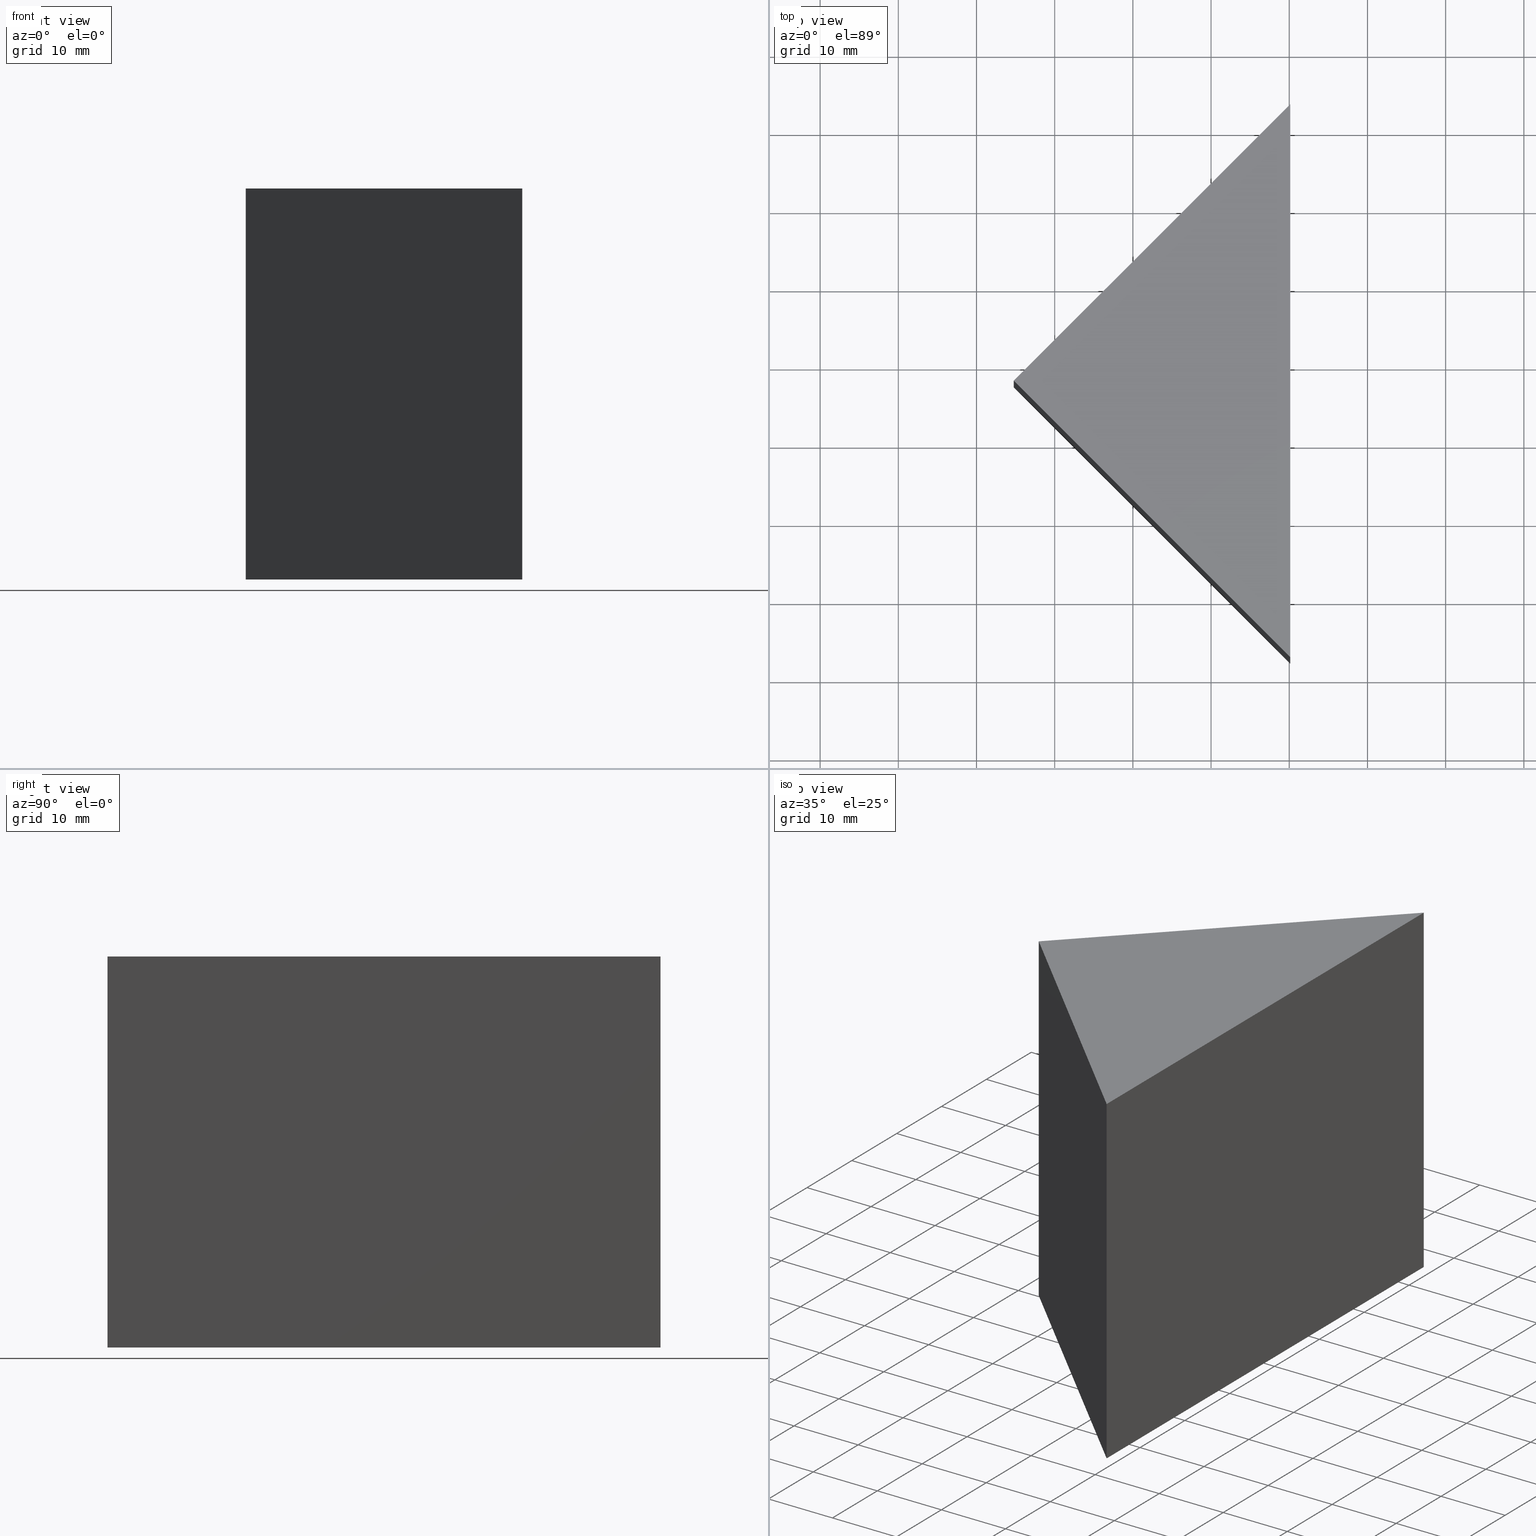
[diagram: canonical four-view strip — front | top / right | iso, engineering-drawing reading convention]
A machine part, canonical four-view strip (front | top / right | iso — engineering-drawing reading convention). The complete STEP part file that produces these views, byte-faithful:
ISO-10303-21;
HEADER;
FILE_DESCRIPTION (( 'STEP AP214' ),
    '1' );
FILE_NAME ('300008.STEP',
    '2019-08-12T08:26:38',
    ( '' ),
    ( '' ),
    'SwSTEP 2.0',
    'SolidWorks 2016',
    '' );
FILE_SCHEMA (( 'AUTOMOTIVE_DESIGN' ));
ENDSEC;

DATA;
#1 = DIRECTION ( 'NONE',  ( -0.0000000000000000000, -0.0000000000000000000, -1.000000000000000000 ) ) ;
#2 = EDGE_LOOP ( 'NONE', ( #130, #165, #70 ) ) ;
#3 = STYLED_ITEM ( 'NONE', ( #128 ), #72 ) ;
#4 = SURFACE_SIDE_STYLE ('',( #55 ) ) ;
#5 = ORIENTED_EDGE ( 'NONE', *, *, #132, .T. ) ;
#6 = PLANE ( 'NONE',  #157 ) ;
#7 = AXIS2_PLACEMENT_3D ( 'NONE', #95, #96, #53 ) ;
#8 = DIRECTION ( 'NONE',  ( 0.7071067811865465700, -0.7071067811865484600, 0.0000000000000000000 ) ) ;
#9 = MECHANICAL_DESIGN_GEOMETRIC_PRESENTATION_REPRESENTATION (  '', ( #3 ), #31 ) ;
#10 = CARTESIAN_POINT ( 'NONE',  ( 590.1220385852766400, 173.1122645876679900, 0.0000000000000000000 ) ) ;
#11 = AXIS2_PLACEMENT_3D ( 'NONE', #34, #138, #67 ) ;
#12 = VERTEX_POINT ( 'NONE', #37 ) ;
#13 = ADVANCED_FACE ( 'NONE', ( #33 ), #154, .F. ) ;
#14 = EDGE_LOOP ( 'NONE', ( #61, #161, #40, #153 ) ) ;
#15 = VECTOR ( 'NONE', #43, 1000.000000000000000 ) ;
#16 = CARTESIAN_POINT ( 'NONE',  ( 590.1220385852766400, 173.1122645876679900, 50.00000000000000000 ) ) ;
#17 = CARTESIAN_POINT ( 'NONE',  ( 554.7666995259492100, 137.7569255283406200, 0.0000000000000000000 ) ) ;
#18 =( LENGTH_UNIT ( ) NAMED_UNIT ( * ) SI_UNIT ( .MILLI., .METRE. ) );
#19 = CARTESIAN_POINT ( 'NONE',  ( 590.1220385852765300, 102.4015864690132200, 0.0000000000000000000 ) ) ;
#20 = PRODUCT_CONTEXT ( 'NONE', #32, 'mechanical' ) ;
#21 = FACE_OUTER_BOUND ( 'NONE', #14, .T. ) ;
#22 = PRESENTATION_STYLE_ASSIGNMENT (( #94 ) ) ;
#23 = FACE_OUTER_BOUND ( 'NONE', #84, .T. ) ;
#24 = ADVANCED_FACE ( 'NONE', ( #21 ), #47, .F. ) ;
#25 = CARTESIAN_POINT ( 'NONE',  ( 0.0000000000000000000, 0.0000000000000000000, 0.0000000000000000000 ) ) ;
#26 = ORIENTED_EDGE ( 'NONE', *, *, #52, .T. ) ;
#27 = DIRECTION ( 'NONE',  ( 1.000000000000000000, 0.0000000000000000000, 0.0000000000000000000 ) ) ;
#28 = PLANE ( 'NONE',  #64 ) ;
#29 = ORIENTED_EDGE ( 'NONE', *, *, #155, .F. ) ;
#30 = CARTESIAN_POINT ( 'NONE',  ( 590.1220385852765300, 102.4015864690132200, 50.00000000000000000 ) ) ;
#31 =( GEOMETRIC_REPRESENTATION_CONTEXT ( 3 ) GLOBAL_UNCERTAINTY_ASSIGNED_CONTEXT ( ( #158 ) ) GLOBAL_UNIT_ASSIGNED_CONTEXT ( ( #41, #144, #134 ) ) REPRESENTATION_CONTEXT ( 'NONE', 'WORKASPACE' ) );
#32 = APPLICATION_CONTEXT ( 'automotive_design' ) ;
#33 = FACE_OUTER_BOUND ( 'NONE', #106, .T. ) ;
#34 = CARTESIAN_POINT ( 'NONE',  ( 0.0000000000000000000, 0.0000000000000000000, 0.0000000000000000000 ) ) ;
#35 = VERTEX_POINT ( 'NONE', #131 ) ;
#36 = ORIENTED_EDGE ( 'NONE', *, *, #99, .F. ) ;
#37 = CARTESIAN_POINT ( 'NONE',  ( 590.1220385852765300, 102.4015864690132200, 0.0000000000000000000 ) ) ;
#38 = ORIENTED_EDGE ( 'NONE', *, *, #140, .T. ) ;
#39 =( GEOMETRIC_REPRESENTATION_CONTEXT ( 3 ) GLOBAL_UNCERTAINTY_ASSIGNED_CONTEXT ( ( #146 ) ) GLOBAL_UNIT_ASSIGNED_CONTEXT ( ( #147, #162, #137 ) ) REPRESENTATION_CONTEXT ( 'NONE', 'WORKASPACE' ) );
#40 = ORIENTED_EDGE ( 'NONE', *, *, #52, .F. ) ;
#41 =( LENGTH_UNIT ( ) NAMED_UNIT ( * ) SI_UNIT ( .MILLI., .METRE. ) );
#42 = ORIENTED_EDGE ( 'NONE', *, *, #93, .T. ) ;
#43 = DIRECTION ( 'NONE',  ( -0.7071067811865481300, -0.7071067811865470200, -0.0000000000000000000 ) ) ;
#44 = COLOUR_RGB ( '',1.000000000000000000, 1.000000000000000000, 1.000000000000000000 ) ;
#45 =( NAMED_UNIT ( * ) PLANE_ANGLE_UNIT ( ) SI_UNIT ( $, .RADIAN. ) );
#46 = DIRECTION ( 'NONE',  ( -0.0000000000000000000, 0.0000000000000000000, 1.000000000000000000 ) ) ;
#47 = PLANE ( 'NONE',  #77 ) ;
#48 = CLOSED_SHELL ( 'NONE', ( #13, #101, #24, #105, #49 ) ) ;
#49 = ADVANCED_FACE ( 'NONE', ( #88 ), #28, .F. ) ;
#50 = DIRECTION ( 'NONE',  ( 0.7071067811865465700, -0.7071067811865484600, 0.0000000000000000000 ) ) ;
#51 = VERTEX_POINT ( 'NONE', #156 ) ;
#52 = EDGE_CURVE ( 'NONE', #117, #57, #150, .T. ) ;
#53 = DIRECTION ( 'NONE',  ( 1.000000000000000000, 0.0000000000000000000, 0.0000000000000000000 ) ) ;
#54 = CARTESIAN_POINT ( 'NONE',  ( 590.1220385852766400, 173.1122645876679900, 50.00000000000000000 ) ) ;
#55 = SURFACE_STYLE_FILL_AREA ( #143 ) ;
#56 = VECTOR ( 'NONE', #8, 1000.000000000000100 ) ;
#57 = VERTEX_POINT ( 'NONE', #85 ) ;
#58 = COLOUR_RGB ( '',1.000000000000000000, 1.000000000000000000, 1.000000000000000000 ) ;
#59 = VECTOR ( 'NONE', #50, 1000.000000000000100 ) ;
#60 = PRODUCT_DEFINITION_SHAPE ( 'NONE', 'NONE',  #90 ) ;
#61 = ORIENTED_EDGE ( 'NONE', *, *, #136, .T. ) ;
#62 = DIRECTION ( 'NONE',  ( 0.7071067811865484600, 0.7071067811865465700, -0.0000000000000000000 ) ) ;
#63 = FILL_AREA_STYLE_COLOUR ( '', #58 ) ;
#64 = AXIS2_PLACEMENT_3D ( 'NONE', #25, #46, #27 ) ;
#65 = ORIENTED_EDGE ( 'NONE', *, *, #155, .T. ) ;
#66 = VECTOR ( 'NONE', #1, 1000.000000000000000 ) ;
#67 = DIRECTION ( 'NONE',  ( 1.000000000000000000, 0.0000000000000000000, 0.0000000000000000000 ) ) ;
#68 = PLANE ( 'NONE',  #7 ) ;
#69 = SURFACE_SIDE_STYLE ('',( #73 ) ) ;
#70 = ORIENTED_EDGE ( 'NONE', *, *, #119, .F. ) ;
#71 = DIRECTION ( 'NONE',  ( -0.0000000000000000000, -0.0000000000000000000, -1.000000000000000000 ) ) ;
#72 = MANIFOLD_SOLID_BREP ( '͹̨-����1', #48 ) ;
#73 = SURFACE_STYLE_FILL_AREA ( #79 ) ;
#74 = ORIENTED_EDGE ( 'NONE', *, *, #123, .T. ) ;
#75 = PRESENTATION_LAYER_ASSIGNMENT (  '', '', ( #83 ) ) ;
#76 = DIRECTION ( 'NONE',  ( 0.7071067811865470200, -0.7071067811865481300, 0.0000000000000000000 ) ) ;
#77 = AXIS2_PLACEMENT_3D ( 'NONE', #86, #76, #87 ) ;
#78 = VECTOR ( 'NONE', #71, 1000.000000000000000 ) ;
#79 = FILL_AREA_STYLE ('',( #111 ) ) ;
#80 = PRODUCT_DEFINITION_CONTEXT ( 'detailed design', #81, 'design' ) ;
#81 = APPLICATION_CONTEXT ( 'automotive_design' ) ;
#82 = DIRECTION ( 'NONE',  ( -1.570092458683774900E-015, -1.000000000000000000, 0.0000000000000000000 ) ) ;
#83 = STYLED_ITEM ( 'NONE', ( #22 ), #142 ) ;
#84 = EDGE_LOOP ( 'NONE', ( #102, #36, #169, #65 ) ) ;
#85 = CARTESIAN_POINT ( 'NONE',  ( 554.7666995259492100, 137.7569255283406200, 50.00000000000000000 ) ) ;
#86 = CARTESIAN_POINT ( 'NONE',  ( 554.7666995259492100, 137.7569255283406200, 50.00000000000000000 ) ) ;
#87 = DIRECTION ( 'NONE',  ( 0.7071067811865481300, 0.7071067811865470200, 0.0000000000000000000 ) ) ;
#88 = FACE_OUTER_BOUND ( 'NONE', #2, .T. ) ;
#89 = LINE ( 'NONE', #91, #129 ) ;
#90 = PRODUCT_DEFINITION ( 'δ֪', '', #121, #80 ) ;
#91 = CARTESIAN_POINT ( 'NONE',  ( 554.7666995259492100, 137.7569255283406200, 50.00000000000000000 ) ) ;
#92 = APPLICATION_PROTOCOL_DEFINITION ( 'draft international standard', 'automotive_design', 1998, #81 ) ;
#93 = EDGE_CURVE ( 'NONE', #57, #35, #89, .T. ) ;
#94 = SURFACE_STYLE_USAGE ( .BOTH. , #69 ) ;
#95 = CARTESIAN_POINT ( 'NONE',  ( 0.0000000000000000000, 0.0000000000000000000, 50.00000000000000000 ) ) ;
#96 = DIRECTION ( 'NONE',  ( -0.0000000000000000000, 0.0000000000000000000, 1.000000000000000000 ) ) ;
#97 = VECTOR ( 'NONE', #160, 1000.000000000000000 ) ;
#98 = VERTEX_POINT ( 'NONE', #10 ) ;
#99 = EDGE_CURVE ( 'NONE', #117, #98, #100, .T. ) ;
#100 = LINE ( 'NONE', #16, #66 ) ;
#101 = ADVANCED_FACE ( 'NONE', ( #23 ), #6, .F. ) ;
#102 = ORIENTED_EDGE ( 'NONE', *, *, #119, .T. ) ;
#103 = DIRECTION ( 'NONE',  ( -0.7071067811865465700, 0.7071067811865484600, 0.0000000000000000000 ) ) ;
#104 = LINE ( 'NONE', #164, #15 ) ;
#105 = ADVANCED_FACE ( 'NONE', ( #159 ), #68, .T. ) ;
#106 = EDGE_LOOP ( 'NONE', ( #5, #29, #141, #42 ) ) ;
#107 = PRESENTATION_LAYER_ASSIGNMENT (  '', '', ( #3 ) ) ;
#108 = DIRECTION ( 'NONE',  ( -0.0000000000000000000, -0.0000000000000000000, -1.000000000000000000 ) ) ;
#109 = DIRECTION ( 'NONE',  ( 1.570092458683774700E-015, 1.000000000000000000, 0.0000000000000000000 ) ) ;
#110 =( NAMED_UNIT ( * ) SI_UNIT ( $, .STERADIAN. ) SOLID_ANGLE_UNIT ( ) );
#111 = FILL_AREA_STYLE_COLOUR ( '', #44 ) ;
#112 = AXIS2_PLACEMENT_3D ( 'NONE', #168, #62, #103 ) ;
#113 = VECTOR ( 'NONE', #167, 1000.000000000000000 ) ;
#114 = PRODUCT_RELATED_PRODUCT_CATEGORY ( 'part', '', ( #127 ) ) ;
#115 = LINE ( 'NONE', #30, #78 ) ;
#116 = SHAPE_DEFINITION_REPRESENTATION ( #60, #142 ) ;
#117 = VERTEX_POINT ( 'NONE', #54 ) ;
#118 = CARTESIAN_POINT ( 'NONE',  ( 554.7666995259492100, 137.7569255283406200, 50.00000000000000000 ) ) ;
#119 = EDGE_CURVE ( 'NONE', #12, #98, #133, .T. ) ;
#120 = SURFACE_STYLE_USAGE ( .BOTH. , #4 ) ;
#121 = PRODUCT_DEFINITION_FORMATION_WITH_SPECIFIED_SOURCE ( '�κ�', '', #127, .NOT_KNOWN. ) ;
#122 = CARTESIAN_POINT ( 'NONE',  ( 590.1220385852765300, 102.4015864690132200, 50.00000000000000000 ) ) ;
#123 = EDGE_CURVE ( 'NONE', #51, #117, #166, .T. ) ;
#124 = LINE ( 'NONE', #17, #59 ) ;
#125 = EDGE_LOOP ( 'NONE', ( #38, #74, #26 ) ) ;
#126 = MECHANICAL_DESIGN_GEOMETRIC_PRESENTATION_REPRESENTATION (  '', ( #83 ), #149 ) ;
#127 = PRODUCT ( '300008', '300008', '', ( #20 ) ) ;
#128 = PRESENTATION_STYLE_ASSIGNMENT (( #120 ) ) ;
#129 = VECTOR ( 'NONE', #108, 1000.000000000000000 ) ;
#130 = ORIENTED_EDGE ( 'NONE', *, *, #132, .F. ) ;
#131 = CARTESIAN_POINT ( 'NONE',  ( 554.7666995259492100, 137.7569255283406200, 0.0000000000000000000 ) ) ;
#132 = EDGE_CURVE ( 'NONE', #35, #12, #124, .T. ) ;
#133 = LINE ( 'NONE', #19, #97 ) ;
#134 =( NAMED_UNIT ( * ) SI_UNIT ( $, .STERADIAN. ) SOLID_ANGLE_UNIT ( ) );
#135 = UNCERTAINTY_MEASURE_WITH_UNIT (LENGTH_MEASURE( 1.000000000000000100E-005 ), #18, 'distance_accuracy_value', 'NONE');
#136 = EDGE_CURVE ( 'NONE', #98, #35, #104, .T. ) ;
#137 =( NAMED_UNIT ( * ) SI_UNIT ( $, .STERADIAN. ) SOLID_ANGLE_UNIT ( ) );
#138 = DIRECTION ( 'NONE',  ( 0.0000000000000000000, 0.0000000000000000000, 1.000000000000000000 ) ) ;
#139 = CARTESIAN_POINT ( 'NONE',  ( 590.1220385852765300, 102.4015864690132200, 50.00000000000000000 ) ) ;
#140 = EDGE_CURVE ( 'NONE', #57, #51, #152, .T. ) ;
#141 = ORIENTED_EDGE ( 'NONE', *, *, #140, .F. ) ;
#142 = ADVANCED_BREP_SHAPE_REPRESENTATION ( '300008', ( #72, #11 ), #39 ) ;
#143 = FILL_AREA_STYLE ('',( #63 ) ) ;
#144 =( NAMED_UNIT ( * ) PLANE_ANGLE_UNIT ( ) SI_UNIT ( $, .RADIAN. ) );
#145 = VECTOR ( 'NONE', #109, 1000.000000000000000 ) ;
#146 = UNCERTAINTY_MEASURE_WITH_UNIT (LENGTH_MEASURE( 1.000000000000000100E-005 ), #147, 'distance_accuracy_value', 'NONE');
#147 =( LENGTH_UNIT ( ) NAMED_UNIT ( * ) SI_UNIT ( .MILLI., .METRE. ) );
#148 = DIRECTION ( 'NONE',  ( -1.000000000000000000, 1.570092458683774900E-015, 0.0000000000000000000 ) ) ;
#149 =( GEOMETRIC_REPRESENTATION_CONTEXT ( 3 ) GLOBAL_UNCERTAINTY_ASSIGNED_CONTEXT ( ( #135 ) ) GLOBAL_UNIT_ASSIGNED_CONTEXT ( ( #18, #45, #110 ) ) REPRESENTATION_CONTEXT ( 'NONE', 'WORKASPACE' ) );
#150 = LINE ( 'NONE', #118, #113 ) ;
#151 = CARTESIAN_POINT ( 'NONE',  ( 554.7666995259492100, 137.7569255283406200, 50.00000000000000000 ) ) ;
#152 = LINE ( 'NONE', #151, #56 ) ;
#153 = ORIENTED_EDGE ( 'NONE', *, *, #99, .T. ) ;
#154 = PLANE ( 'NONE',  #112 ) ;
#155 = EDGE_CURVE ( 'NONE', #51, #12, #115, .T. ) ;
#156 = CARTESIAN_POINT ( 'NONE',  ( 590.1220385852765300, 102.4015864690132200, 50.00000000000000000 ) ) ;
#157 = AXIS2_PLACEMENT_3D ( 'NONE', #139, #148, #82 ) ;
#158 = UNCERTAINTY_MEASURE_WITH_UNIT (LENGTH_MEASURE( 1.000000000000000100E-005 ), #41, 'distance_accuracy_value', 'NONE');
#159 = FACE_OUTER_BOUND ( 'NONE', #125, .T. ) ;
#160 = DIRECTION ( 'NONE',  ( 1.570092458683774700E-015, 1.000000000000000000, 0.0000000000000000000 ) ) ;
#161 = ORIENTED_EDGE ( 'NONE', *, *, #93, .F. ) ;
#162 =( NAMED_UNIT ( * ) PLANE_ANGLE_UNIT ( ) SI_UNIT ( $, .RADIAN. ) );
#163 = APPLICATION_PROTOCOL_DEFINITION ( 'draft international standard', 'automotive_design', 1998, #32 ) ;
#164 = CARTESIAN_POINT ( 'NONE',  ( 554.7666995259492100, 137.7569255283406200, 0.0000000000000000000 ) ) ;
#165 = ORIENTED_EDGE ( 'NONE', *, *, #136, .F. ) ;
#166 = LINE ( 'NONE', #122, #145 ) ;
#167 = DIRECTION ( 'NONE',  ( -0.7071067811865481300, -0.7071067811865470200, -0.0000000000000000000 ) ) ;
#168 = CARTESIAN_POINT ( 'NONE',  ( 554.7666995259492100, 137.7569255283406200, 50.00000000000000000 ) ) ;
#169 = ORIENTED_EDGE ( 'NONE', *, *, #123, .F. ) ;
ENDSEC;
END-ISO-10303-21;
